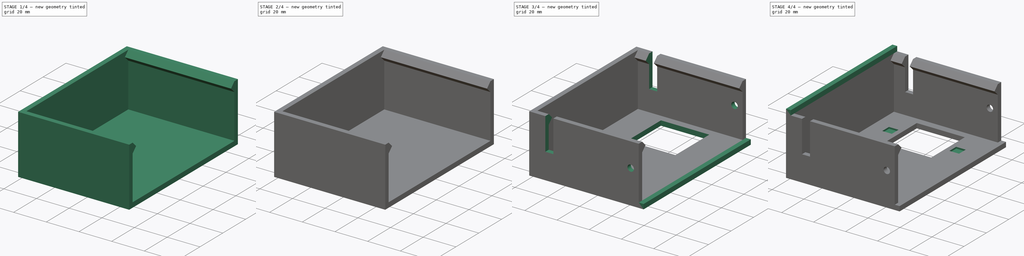
[diagram: build sequence overview — one tinted view per stage of 4, left to right]
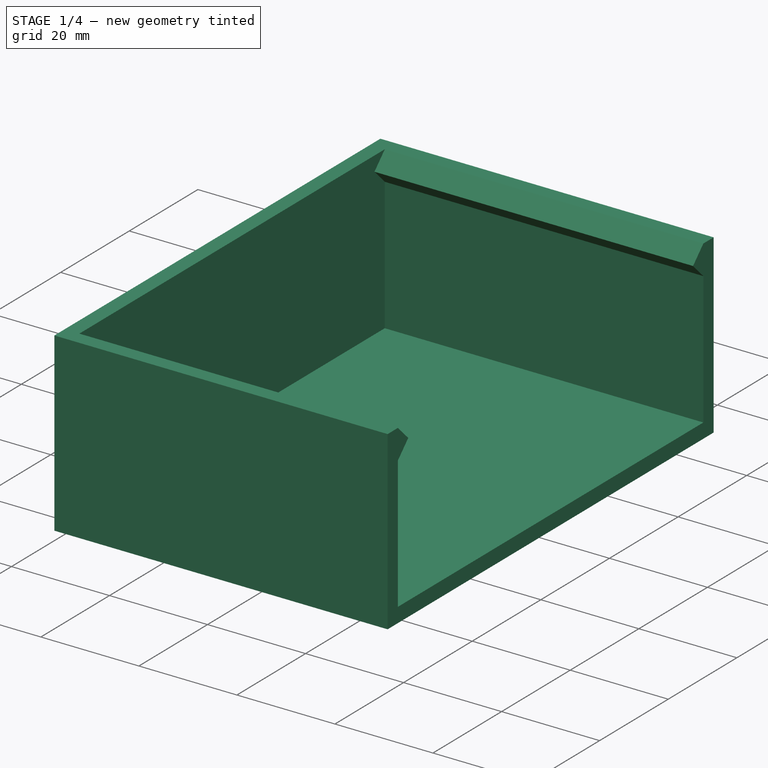
[diagram: stage 1 of 4 — iso view after this stage's code; geometry added in this stage tinted green]
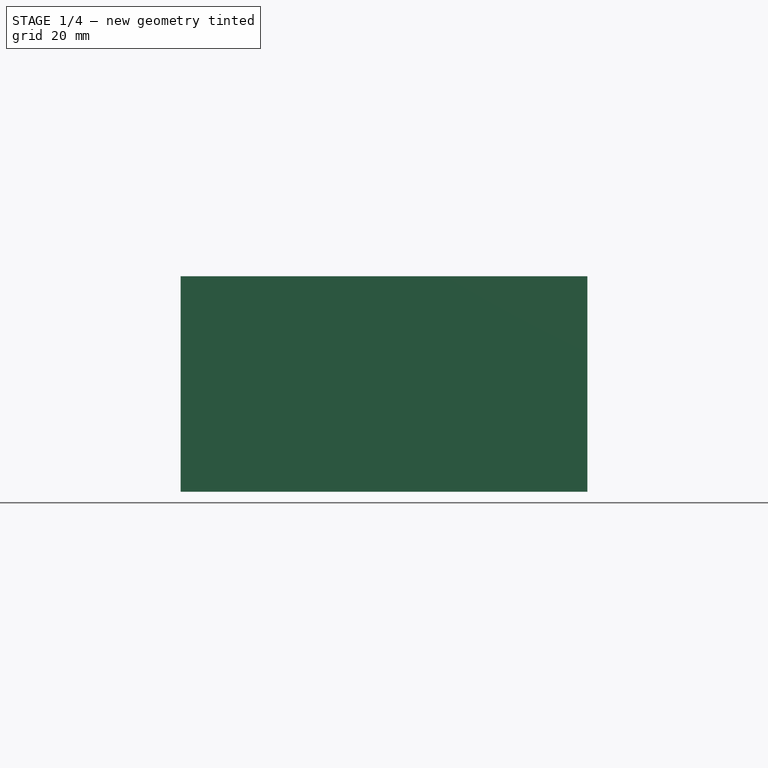
[diagram: stage 1 of 4 — front view after this stage's code; geometry added in this stage tinted green]
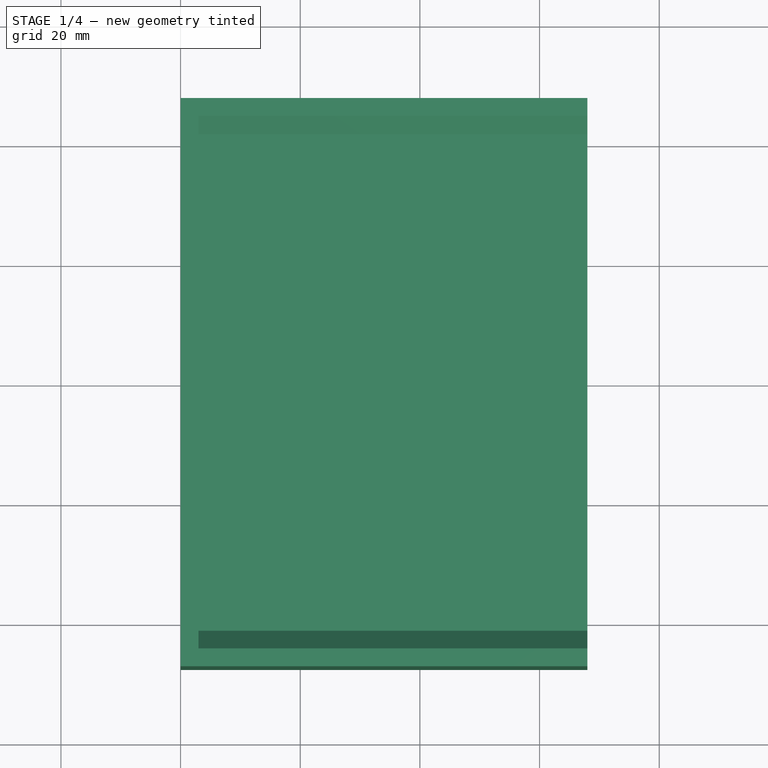
[diagram: stage 1 of 4 — top view after this stage's code; geometry added in this stage tinted green]
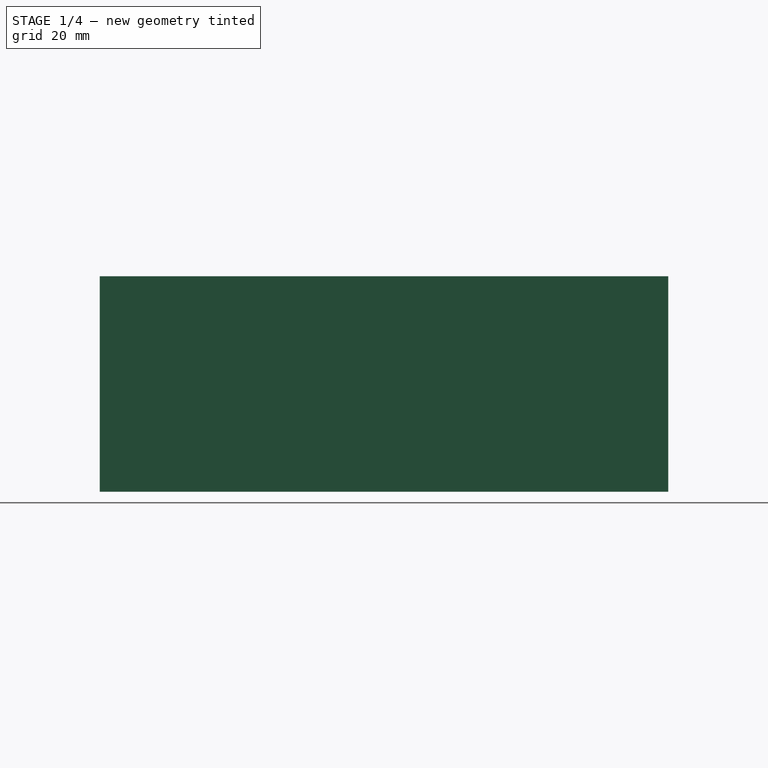
[diagram: stage 1 of 4 — right view after this stage's code; geometry added in this stage tinted green]
FCSTD DOCUMENT  (FreeCAD 1.0R38641 +468 (Git))
Label: boden
License: All rights reserved
LicenseURL: https://en.wikipedia.org/wiki/All_rights_reserved
objects: Sketcher::SketchObject×8, PartDesign::Pad×4, PartDesign::Pocket×4, PartDesign::Hole×1, PartDesign::Body×1
note: 44 computed .brp shape members not serialized (recipe doc carries the construction recipe); baked Part::Feature solids carry a one-line shape summary decoded from their .brp

FEATURE [Sketcher::SketchObject] Sketch  label="Wand"
  ArcFitTolerance = 1e-06
  AttachmentSupport = -> [YZ_Plane]
  FullyConstrained = true
  MakeInternals = false
  MapMode = 5
  Placement = pos=(0,0,0) rot=(0.57735,0.57735,0.57735;2.0944rad)
  sketch-geometry (4):
    g0: LineSegment StartX=-47.5 StartY=0 StartZ=0 EndX=47.5 EndY=0 EndZ=0
    g1: LineSegment StartX=47.5 StartY=0 StartZ=0 EndX=47.5 EndY=36 EndZ=0
    g2: LineSegment StartX=47.5 StartY=36 StartZ=0 EndX=-47.5 EndY=36 EndZ=0
    g3: LineSegment StartX=-47.5 StartY=36 StartZ=0 EndX=-47.5 EndY=0 EndZ=0
  constraints (11):
    c: Coincident(g0,g1)
    c: Coincident(g1,g2)
    c: Coincident(g2,g3)
    c: Coincident(g3,g0)
    c: Horizontal(g2)
    c: Vertical(g1)
    c: Vertical(g3)
    c: PointOnObject(g0,g-1)
    c: Symmetric(g0,g0,g-2)
    c: DistanceX(g0,g0) = 95
    c: DistanceY(g0,g2) = 36
FEATURE [PartDesign::Pad] Pad
  Direction = (1,0,0)
  Length = 3
  Length2 = 10
  Placement = pos=(0,0,0) rot=(1,1,1;2.0944rad)
  Profile = -> Sketch
  ReferenceAxis = -> Sketch [N_Axis]
  Refine = true
  Suppressed = false
  Type = 0
FEATURE [Sketcher::SketchObject] Sketch001  label="Schublade"
  ArcFitTolerance = 1e-06
  AttachmentSupport = -> [Pad]
  ExternalGeometry = -> [Pad]
  FullyConstrained = true
  MakeInternals = false
  MapMode = 5
  Placement = pos=(3,0,0) rot=(0.57735,0.57735,0.57735;2.0944rad)
  sketch-geometry (12):
    g0: LineSegment StartX=-47.5 StartY=36 StartZ=0 EndX=-44.5 EndY=36 EndZ=0
    g1: LineSegment StartX=-44.5 StartY=36 StartZ=0 EndX=-41.5 EndY=33 EndZ=0
    g2: LineSegment StartX=-41.5 StartY=33 StartZ=0 EndX=-44.5 EndY=30 EndZ=0
    g3: LineSegment StartX=-44.5 StartY=30 StartZ=0 EndX=-44.5 EndY=3 EndZ=0
    g4: LineSegment StartX=-44.5 StartY=3 StartZ=0 EndX=44.5 EndY=3 EndZ=0
    g5: LineSegment StartX=44.5 StartY=3 StartZ=0 EndX=44.5 EndY=30 EndZ=0
    g6: LineSegment StartX=44.5 StartY=30 StartZ=0 EndX=41.5 EndY=33 EndZ=0
    g7: LineSegment StartX=41.5 StartY=33 StartZ=0 EndX=44.5 EndY=36 EndZ=0
    g8: LineSegment StartX=44.5 StartY=36 StartZ=0 EndX=47.5 EndY=36 EndZ=0
    g9: LineSegment StartX=47.5 StartY=36 StartZ=0 EndX=47.5 EndY=0 EndZ=0
    g10: LineSegment StartX=47.5 StartY=0 StartZ=0 EndX=-47.5 EndY=0 EndZ=0
    g11: LineSegment StartX=-47.5 StartY=0 StartZ=0 EndX=-47.5 EndY=36 EndZ=0
  constraints (28):
    c: Coincident(g-4,g0)
    c: Horizontal(g0)
    c: Coincident(g0,g1)
    c: Coincident(g1,g2)
    c: Coincident(g2,g3)
    c: Vertical(g3)
    c: Coincident(g3,g4)
    c: Coincident(g4,g5)
    c: Coincident(g5,g6)
    c: Coincident(g6,g7)
    c: Coincident(g7,g8)
    c: Coincident(g8,g-3)
    c: Coincident(g8,g9)
    c: Coincident(g9,g-3)
    c: Coincident(g9,g10)
    c: Coincident(g10,g-4)
    c: Coincident(g10,g11)
    c: Coincident(g11,g0)
    c: Symmetric(g3,g4,g-2)
    c: Symmetric(g1,g6,g-2)
    c: DistanceY(g3) = 3
    c: DistanceX(g10,g3) = 3
    c: Symmetric(g2,g5,g-2)
    c: Angle(g1) = -0.785398
    c: Symmetric(g0,g7,g-2)
    c: Angle(g2) = -2.35619
    c: Vertical(g2,g0)
    c: DistanceY(g-1,g5) = 30
FEATURE [PartDesign::Pad] Pad001
  BaseFeature = -> Pad
  Direction = (1,0,0)
  Length = 65
  Length2 = 10
  Placement = pos=(0,0,0) rot=(1,1,1;2.0944rad)
  Profile = -> Sketch001
  ReferenceAxis = -> Sketch001 [N_Axis]
  Refine = true
  Suppressed = false
  Type = 0
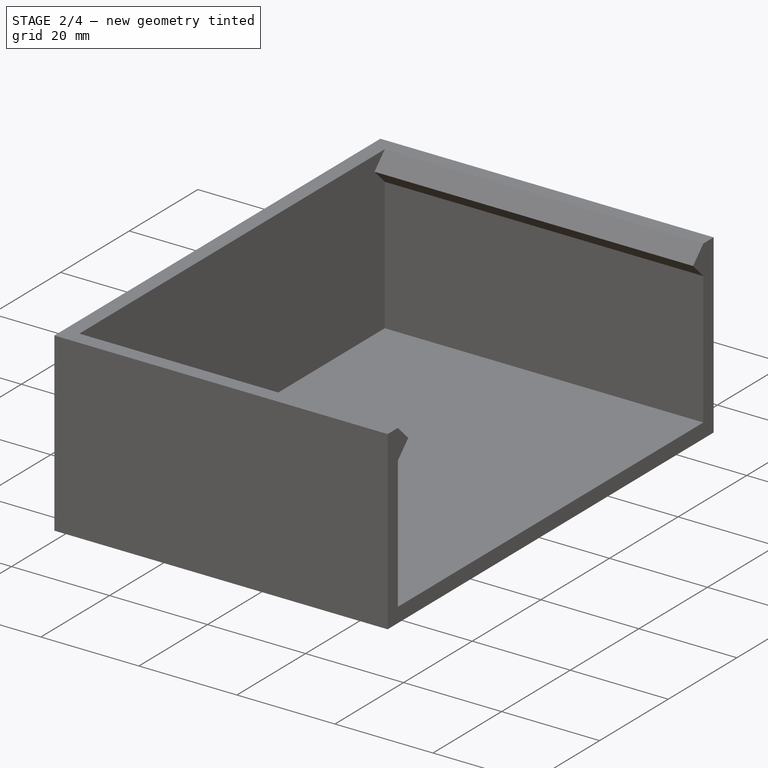
[diagram: stage 2 of 4 — iso view after this stage's code; geometry added in this stage tinted green]
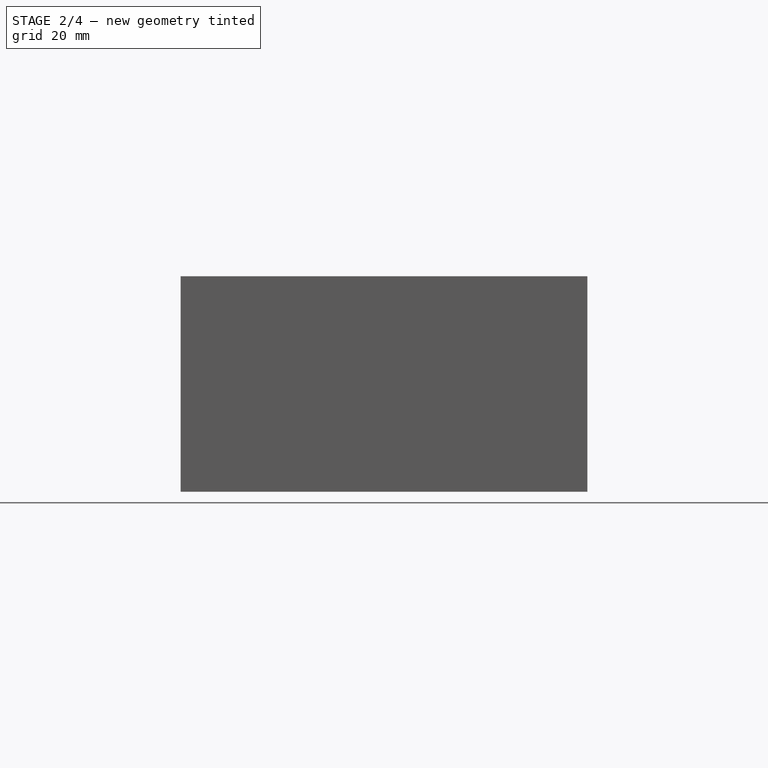
[diagram: stage 2 of 4 — front view after this stage's code; geometry added in this stage tinted green]
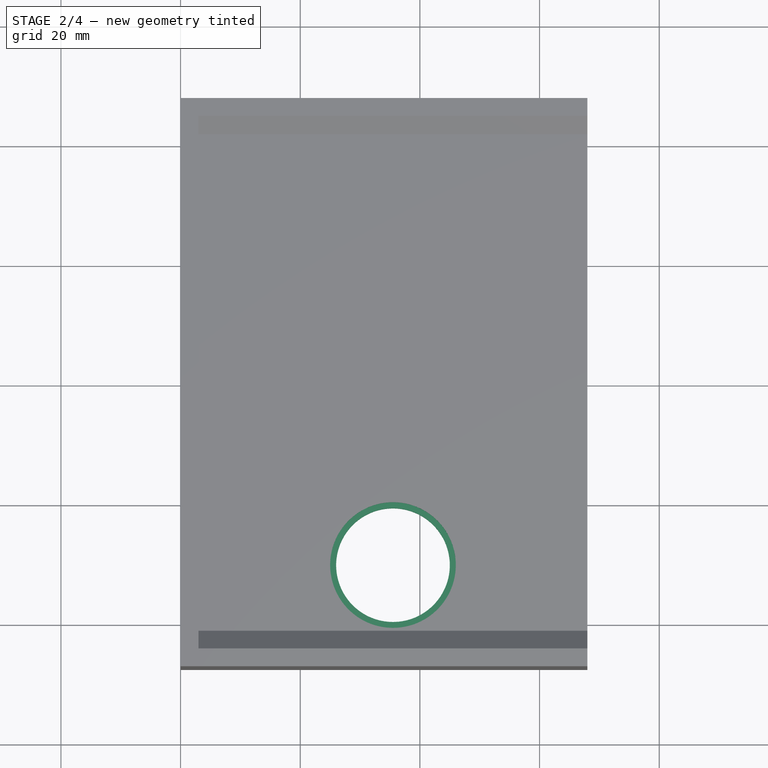
[diagram: stage 2 of 4 — top view after this stage's code; geometry added in this stage tinted green]
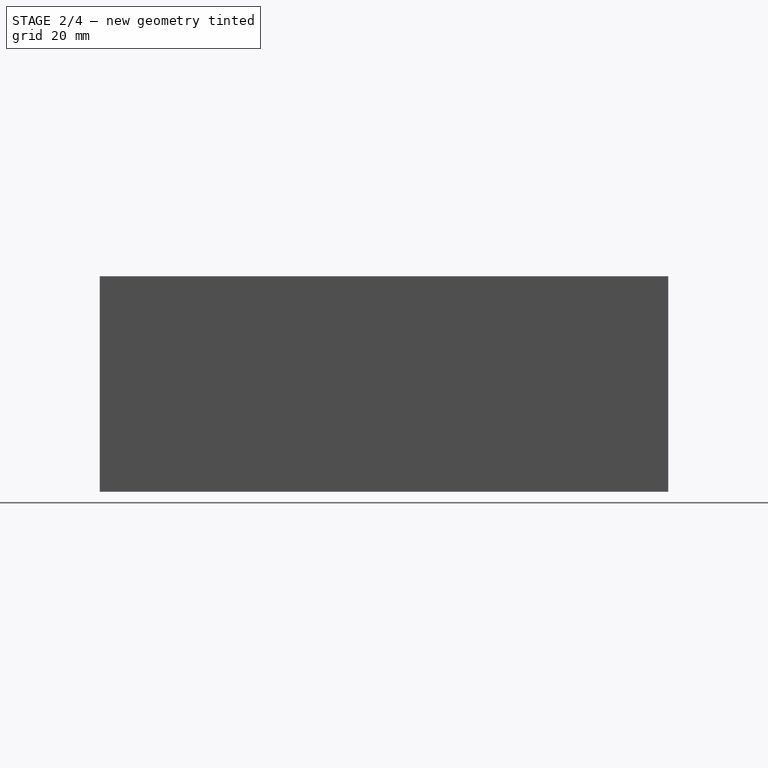
[diagram: stage 2 of 4 — right view after this stage's code; geometry added in this stage tinted green]
FEATURE [Sketcher::SketchObject] Sketch002  label="QRCode"
  ArcFitTolerance = 1e-06
  AttachmentSupport = -> [Pad001]
  ExternalGeometry = -> [Pad001]
  FullyConstrained = true
  MakeInternals = false
  MapMode = 5
  Placement = pos=(0,7e-16,3) rot=(0,0,-1;1.5708rad)
  sketch-geometry (2):
    g0: GeomPoint [constr] X=-44.5 Y=35.5 Z=0
    g1: Circle CenterX=30 CenterY=35.5 CenterZ=0 NormalX=0 NormalY=0 NormalZ=1 AngleXU=0 Radius=10.5
  constraints (4):
    c: Symmetric(g-3,g-3,g0)
    c: Diameter(g1) = 21
    c: Horizontal(g1,g0)
    c: DistanceX(g-1,g1) = 30
FEATURE [PartDesign::Pocket] Pocket
  BaseFeature = -> Pad001
  Direction = (0,0,-1)
  Length = 1
  Length2 = 5
  Placement = pos=(0,0,0) rot=(1,1,1;2.0944rad)
  Profile = -> Sketch002
  ReferenceAxis = -> Sketch002 [N_Axis]
  Refine = true
  Suppressed = false
  Type = 0
FEATURE [PartDesign::Hole] Hole
  BaseFeature = -> Pocket
  CustomThreadClearance = 0
  Depth = 246.944
  DepthType = 1
  Diameter = 19
  DrillForDepth = false
  DrillPoint = 1
  DrillPointAngle = 118
  HoleCutCountersinkAngle = 90
  HoleCutCustomValues = false
  HoleCutDepth = 0
  HoleCutDiameter = 0
  HoleCutType = 0
  ModelThread = false
  Placement = pos=(0,0,0) rot=(1,1,1;2.0944rad)
  Profile = -> Sketch002
  Refine = true
  Suppressed = false
  Tapered = false
  TaperedAngle = 90
  ThreadClass = 0
  ThreadDepth = 246.944
  ThreadDepthType = 0
  ThreadDirection = 0
  ThreadFit = 0
  ThreadSize = 0
  ThreadType = 0
  Threaded = false
  UseCustomThreadClearance = false
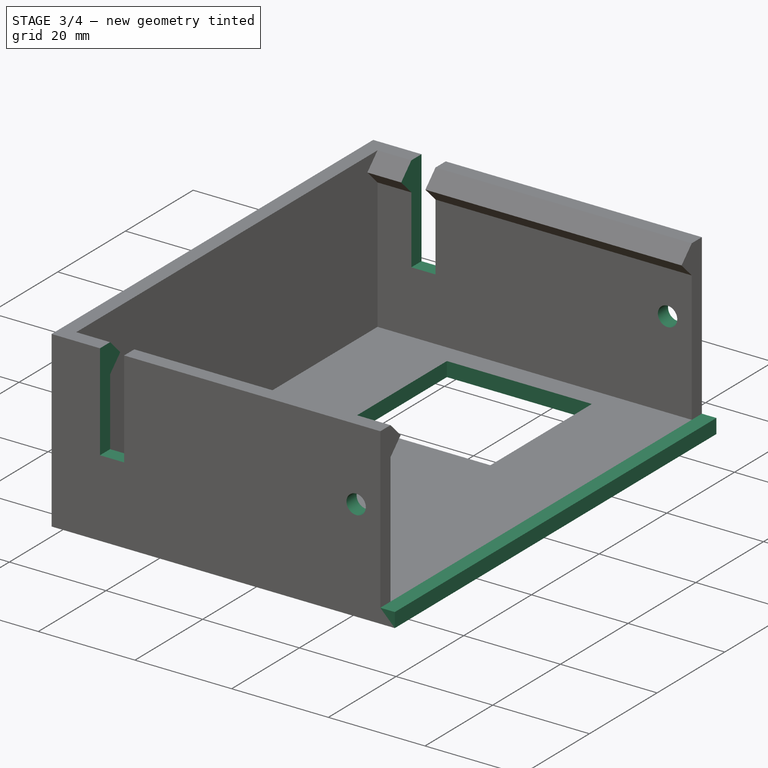
[diagram: stage 3 of 4 — iso view after this stage's code; geometry added in this stage tinted green]
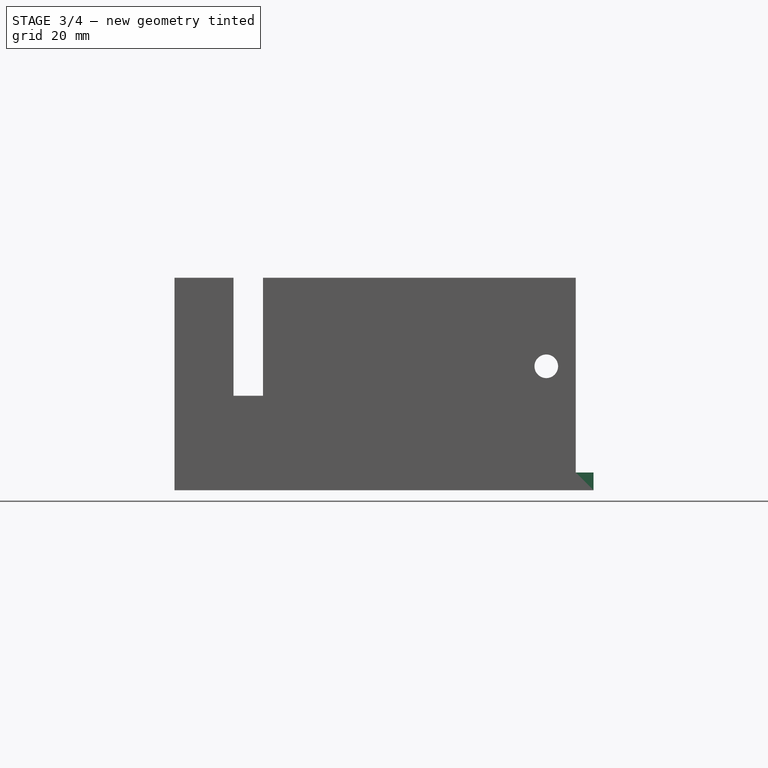
[diagram: stage 3 of 4 — front view after this stage's code; geometry added in this stage tinted green]
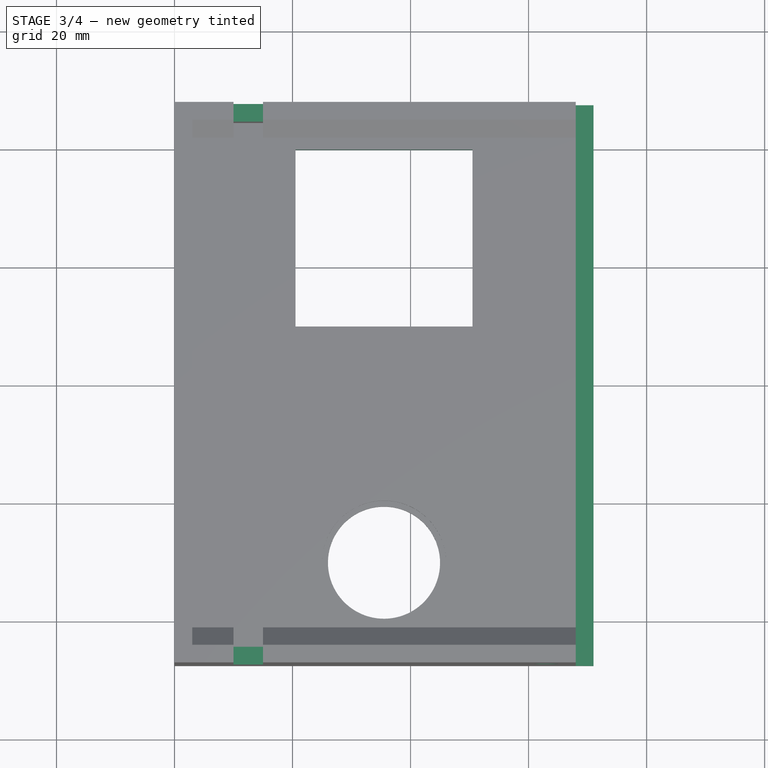
[diagram: stage 3 of 4 — top view after this stage's code; geometry added in this stage tinted green]
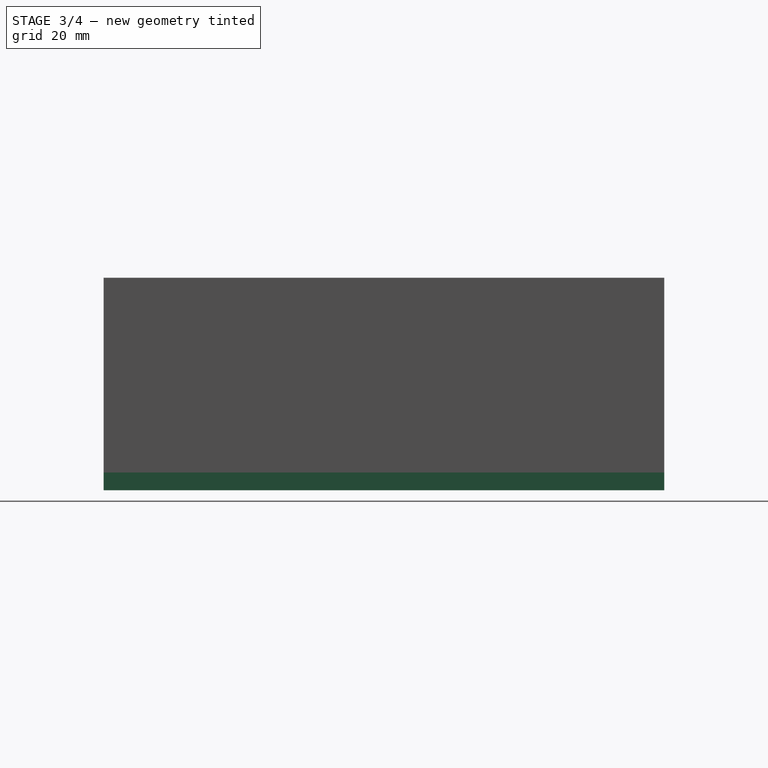
[diagram: stage 3 of 4 — right view after this stage's code; geometry added in this stage tinted green]
FEATURE [Sketcher::SketchObject] Sketch003  label="Kabelstrap"
  ArcFitTolerance = 1e-06
  AttachmentSupport = -> [Hole]
  ExternalGeometry = -> [Hole]
  FullyConstrained = true
  MakeInternals = false
  MapMode = 5
  Placement = pos=(-2e-15,1.3e-15,3) rot=(0,0,-1;1.5708rad)
  sketch-geometry (6):
    g0: GeomPoint [constr] X=-44.5 Y=35.5 Z=0
    g1: LineSegment StartX=-40 StartY=50.5 StartZ=0 EndX=-40 EndY=20.5 EndZ=0
    g2: LineSegment StartX=-40 StartY=20.5 StartZ=0 EndX=-10 EndY=20.5 EndZ=0
    g3: LineSegment StartX=-10 StartY=20.5 StartZ=0 EndX=-10 EndY=50.5 EndZ=0
    g4: LineSegment StartX=-10 StartY=50.5 StartZ=0 EndX=-40 EndY=50.5 EndZ=0
    g5: GeomPoint [constr] X=-40 Y=35.5 Z=0
  constraints (14):
    c: Symmetric(g-3,g-3,g0)
    c: Coincident(g1,g2)
    c: Coincident(g2,g3)
    c: Coincident(g3,g4)
    c: Coincident(g4,g1)
    c: Vertical(g1)
    c: Vertical(g3)
    c: Horizontal(g2)
    c: Horizontal(g4)
    c: Distance(g1,g3) = 30
    c: Distance(g2,g4) = 30
    c: Symmetric(g1,g1,g5)
    c: Horizontal(g0,g5)
    c: DistanceX(g2,g-1) = 10
FEATURE [PartDesign::Pocket] Pocket001
  BaseFeature = -> Hole
  Direction = (0,0,-1)
  Length = 5
  Length2 = 5
  Placement = pos=(0,0,0) rot=(1,1,1;2.0944rad)
  Profile = -> Sketch003
  ReferenceAxis = -> Sketch003 [N_Axis]
  Refine = true
  Suppressed = false
  Type = 0
FEATURE [Sketcher::SketchObject] Sketch004
  ArcFitTolerance = 1e-06
  AttachmentSupport = -> [Pocket001]
  ExternalGeometry = -> [Pocket001]
  FullyConstrained = true
  MakeInternals = false
  MapMode = 5
  Placement = pos=(0,-47.5,4.75e-14) rot=(0.57735,0.57735,-0.57735;2.0944rad)
  sketch-geometry (6):
    g0: LineSegment StartX=-36 StartY=15 StartZ=0 EndX=-36 EndY=10 EndZ=0
    g1: LineSegment StartX=-36 StartY=10 StartZ=0 EndX=-16 EndY=10 EndZ=0
    g2: LineSegment StartX=-16 StartY=10 StartZ=0 EndX=-16 EndY=15 EndZ=0
    g3: LineSegment StartX=-16 StartY=15 StartZ=0 EndX=-36 EndY=15 EndZ=0
    g4: Circle CenterX=-21 CenterY=63 CenterZ=0 NormalX=0 NormalY=0 NormalZ=1 AngleXU=0 Radius=2
    g5: GeomPoint [constr] X=-18 Y=68 Z=0
  constraints (16):
    c: Coincident(g0,g1)
    c: Coincident(g1,g2)
    c: Coincident(g2,g3)
    c: Coincident(g3,g0)
    c: Vertical(g0)
    c: Vertical(g2)
    c: Horizontal(g1)
    c: Horizontal(g3)
    c: Distance(g0,g2) = 20
    c: Distance(g1,g3) = 5
    c: Vertical(g0,g-3)
    c: DistanceY(g-1,g1) = 10
    c: Diameter(g4) = 4
    c: Symmetric(g-4,g-4,g5)
    c: DistanceY(g4,g5) = 5
    c: DistanceX(g4,g5) = 3
FEATURE [PartDesign::Pocket] Pocket002
  BaseFeature = -> Pocket001
  Direction = (0,1,0)
  Length = 100
  Length2 = 5
  Placement = pos=(0,0,0) rot=(1,1,1;2.0944rad)
  Profile = -> Sketch004
  ReferenceAxis = -> Sketch004 [N_Axis]
  Refine = true
  Suppressed = false
  Type = 0
FEATURE [Sketcher::SketchObject] Sketch005
  ArcFitTolerance = 1e-06
  AttachmentSupport = -> [Pocket002]
  ExternalGeometry = -> [Pocket002]
  FullyConstrained = true
  MakeInternals = false
  MapMode = 5
  Placement = pos=(68,-6.04e-14,3.02e-14) rot=(0.57735,0.57735,0.57735;2.0944rad)
  sketch-geometry (4):
    g0: LineSegment StartX=-47.5 StartY=3 StartZ=0 EndX=-47.5 EndY=-6.39e-14 EndZ=0
    g1: LineSegment StartX=-47.5 StartY=-6.39e-14 StartZ=0 EndX=47.5 EndY=-6.39e-14 EndZ=0
    g2: LineSegment StartX=47.5 StartY=-6.39e-14 StartZ=0 EndX=47.5 EndY=3 EndZ=0
    g3: LineSegment StartX=47.5 StartY=3 StartZ=0 EndX=-47.5 EndY=3 EndZ=0
  constraints (11):
    c: Coincident(g0,g1)
    c: Coincident(g1,g2)
    c: Coincident(g2,g3)
    c: Coincident(g3,g0)
    c: Vertical(g0)
    c: Vertical(g2)
    c: Horizontal(g1)
    c: Horizontal(g3)
    c: Horizontal(g0,g-4)
    c: Coincident(g1,g-5)
    c: Vertical(g0,g-3)
FEATURE [PartDesign::Pad] Pad002
  BaseFeature = -> Pocket002
  Direction = (1,0,0)
  Length = 3
  Length2 = 10
  Placement = pos=(0,0,0) rot=(1,1,1;2.0944rad)
  Profile = -> Sketch005
  ReferenceAxis = -> Sketch005 [N_Axis]
  Refine = true
  Suppressed = false
  Type = 0
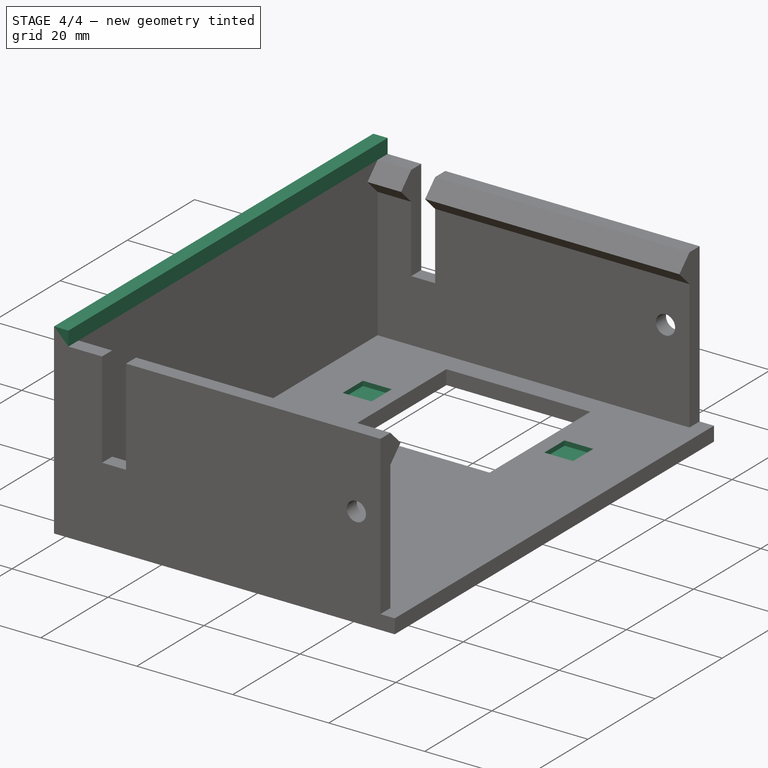
[diagram: stage 4 of 4 — iso view after this stage's code; geometry added in this stage tinted green]
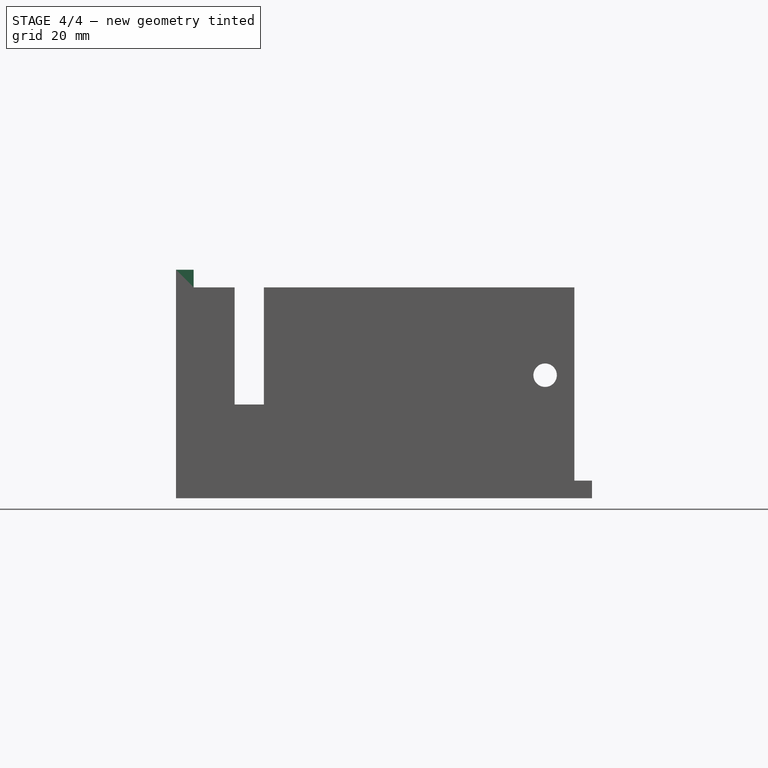
[diagram: stage 4 of 4 — front view after this stage's code; geometry added in this stage tinted green]
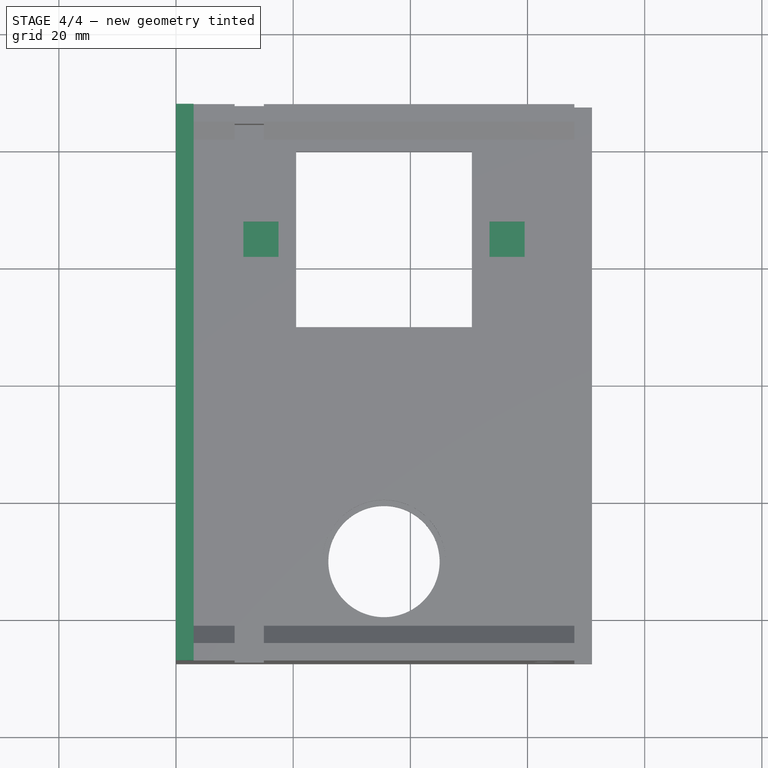
[diagram: stage 4 of 4 — top view after this stage's code; geometry added in this stage tinted green]
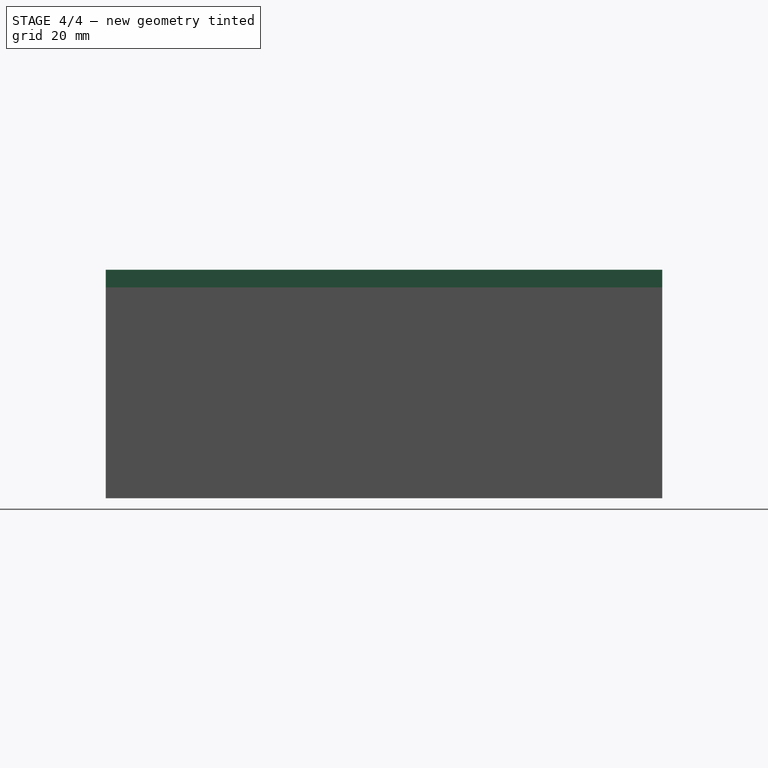
[diagram: stage 4 of 4 — right view after this stage's code; geometry added in this stage tinted green]
FEATURE [Sketcher::SketchObject] Sketch006
  ArcFitTolerance = 1e-06
  AttachmentSupport = -> [Pad002]
  ExternalGeometry = -> [Pad002]
  FullyConstrained = true
  MakeInternals = false
  MapMode = 5
  Placement = pos=(-6e-14,3.47e-14,36) rot=(0,0,-1;1.5708rad)
  sketch-geometry (4):
    g0: LineSegment StartX=-47.5 StartY=3 StartZ=0 EndX=-47.5 EndY=-3.02e-14 EndZ=0
    g1: LineSegment StartX=-47.5 StartY=-3.02e-14 StartZ=0 EndX=47.5 EndY=-3.02e-14 EndZ=0
    g2: LineSegment StartX=47.5 StartY=-3.02e-14 StartZ=0 EndX=47.5 EndY=3 EndZ=0
    g3: LineSegment StartX=47.5 StartY=3 StartZ=0 EndX=-47.5 EndY=3 EndZ=0
  constraints (12):
    c: Coincident(g0,g1)
    c: Coincident(g1,g2)
    c: Coincident(g2,g3)
    c: Coincident(g3,g0)
    c: Vertical(g0)
    c: Vertical(g2)
    c: Horizontal(g1)
    c: Horizontal(g3)
    c: Horizontal(g-4,g0)
    c: Vertical(g0,g-3)
    c: Horizontal(g1,g-5)
    c: Vertical(g2,g-5)
FEATURE [PartDesign::Pad] Pad003
  BaseFeature = -> Pad002
  Direction = (-1.7e-15,0,1)
  Length = 3
  Length2 = 10
  Placement = pos=(0,0,0) rot=(1,1,1;2.0944rad)
  Profile = -> Sketch006
  ReferenceAxis = -> Sketch006 [N_Axis]
  Refine = true
  Suppressed = false
  Type = 0
FEATURE [Sketcher::SketchObject] Sketch007
  ArcFitTolerance = 1e-06
  AttachmentSupport = -> [Pad003]
  ExternalGeometry = -> [Pad003]
  FullyConstrained = true
  MakeInternals = false
  MapMode = 5
  Placement = pos=(-4.3e-15,4.2e-15,3) rot=(0,0,-1;1.5708rad)
  sketch-geometry (11):
    g0: LineSegment StartX=-28 StartY=59.5 StartZ=0 EndX=-28 EndY=53.5 EndZ=0
    g1: LineSegment StartX=-28 StartY=53.5 StartZ=0 EndX=-22 EndY=53.5 EndZ=0
    g2: LineSegment StartX=-22 StartY=53.5 StartZ=0 EndX=-22 EndY=59.5 EndZ=0
    g3: LineSegment StartX=-22 StartY=59.5 StartZ=0 EndX=-28 EndY=59.5 EndZ=0
    g4: LineSegment StartX=-28 StartY=17.5 StartZ=0 EndX=-28 EndY=11.5 EndZ=0
    g5: LineSegment StartX=-28 StartY=11.5 StartZ=0 EndX=-22 EndY=11.5 EndZ=0
    g6: LineSegment StartX=-22 StartY=11.5 StartZ=0 EndX=-22 EndY=17.5 EndZ=0
    g7: LineSegment StartX=-22 StartY=17.5 StartZ=0 EndX=-28 EndY=17.5 EndZ=0
    g8: GeomPoint [constr] X=-25 Y=53.5 Z=0
    g9: GeomPoint [constr] X=-25 Y=17.5 Z=0
    g10: GeomPoint [constr] X=-25 Y=50.5 Z=0
  constraints (27):
    c: Coincident(g0,g1)
    c: Coincident(g1,g2)
    c: Coincident(g2,g3)
    c: Coincident(g3,g0)
    c: Vertical(g0)
    c: Vertical(g2)
    c: Horizontal(g1)
    c: Horizontal(g3)
    c: Distance(g0,g2) = 6
    c: Distance(g1,g3) = 6
    c: Coincident(g4,g5)
    c: Coincident(g5,g6)
    c: Coincident(g6,g7)
    c: Coincident(g7,g4)
    c: Vertical(g4)
    c: Vertical(g6)
    c: Horizontal(g5)
    c: Horizontal(g7)
    c: Distance(g4,g6) = 6
    c: Distance(g5,g7) = 6
    c: Symmetric(g1,g0,g8)
    c: Symmetric(g-3,g-3,g10)
    c: Symmetric(g4,g6,g9)
    c: DistanceY(g6,g-4) = 3
    c: DistanceY(g-3,g1) = 3
    c: Vertical(g8,g10)
    c: Vertical(g9,g10)
FEATURE [PartDesign::Pocket] Pocket003
  BaseFeature = -> Pad003
  Direction = (1.4e-15,-1.4e-15,-1)
  Length = 1
  Length2 = 5
  Placement = pos=(0,0,0) rot=(1,1,1;2.0944rad)
  Profile = -> Sketch007
  ReferenceAxis = -> Sketch007 [N_Axis]
  Refine = true
  Suppressed = false
  Type = 0
FEATURE [PartDesign::Body] Body  label="Körper"
  AllowCompound = false
  Group = -> [Sketch,Pad,Sketch001,Pad001,Sketch002,Pocket,Hole,Sketch003,Pocket001,Sketch004,Pocket002,Sketch005,Pad002,Sketch006,Pad003,Sketch007,Pocket003]
  Origin = -> Origin
  Tip = -> Pocket003
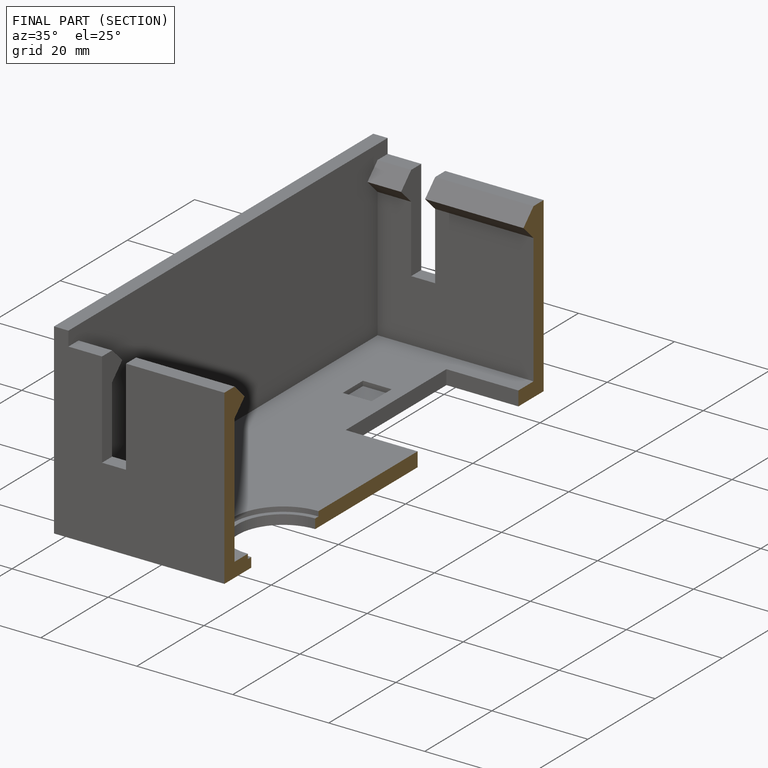
[diagram: finished part — half-section view (interior)]
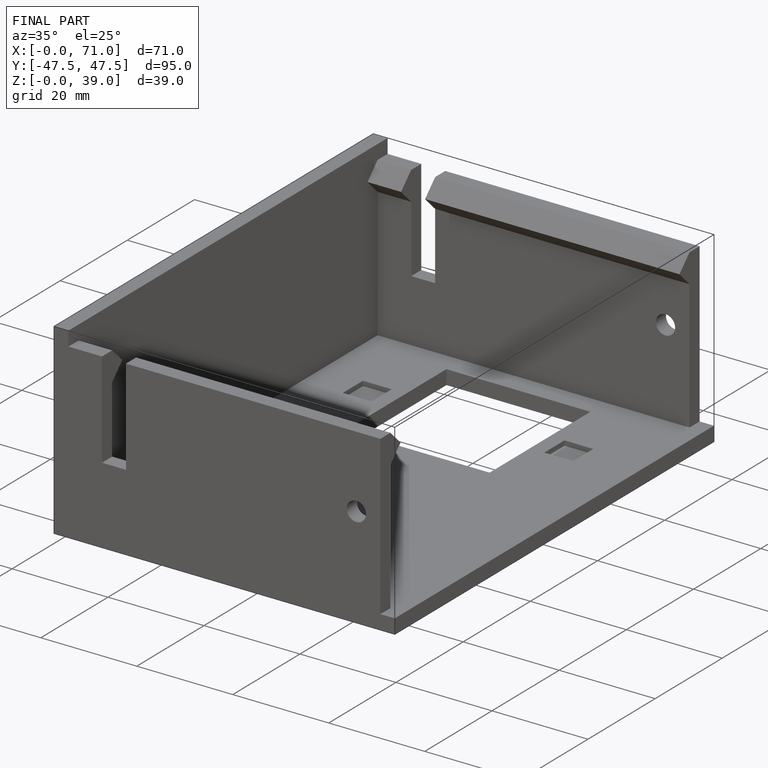
[diagram: finished part — iso view with bounding-box wireframe]
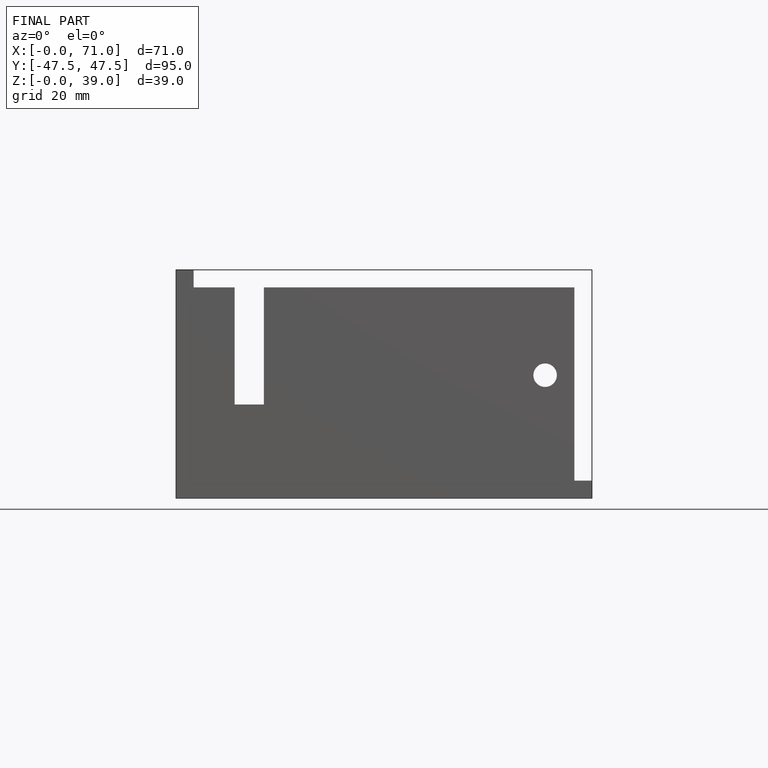
[diagram: finished part — front view with bounding-box wireframe]
